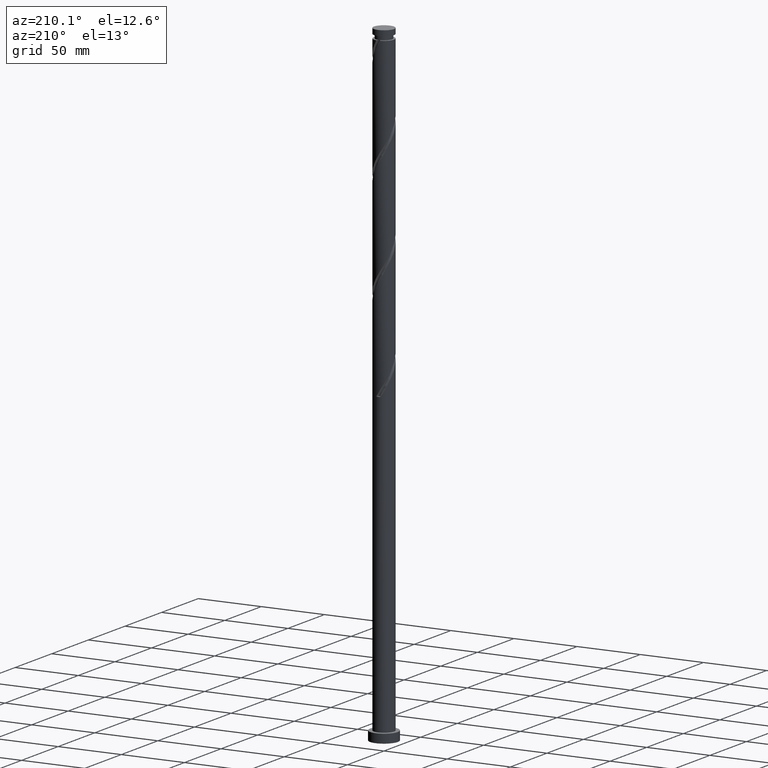
[diagram: clean part render]
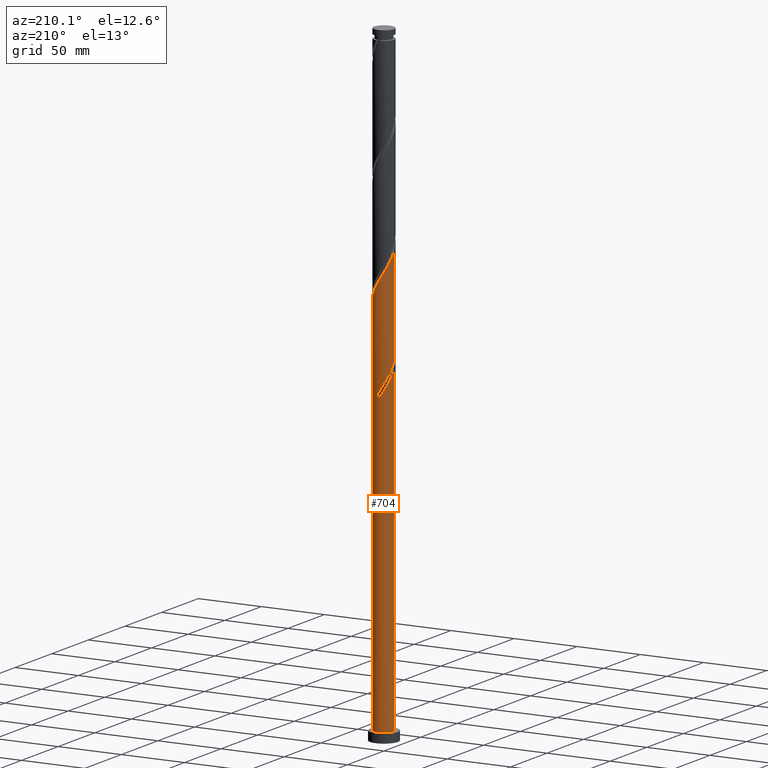
[diagram: same view with one face highlighted and labeled with its STEP entity id]
A machine part, auxiliary view. The second image highlights one B-rep face of the part: STEP entity #704.
In plain terms, the highlighted cylindrical surface (edge-blend (fillet) strip) has radius 8 mm, axis along (-0, -0, -1).
Its self-contained STEP definition (entity closure, byte-faithful):
#2 = CARTESIAN_POINT ( 'NONE',  ( -6.234280214836370959, 5.074897616815222889, 251.7156742140035419 ) ) ;
#38 = DIRECTION ( 'NONE',  ( 1.000000000000000000, 0.000000000000000000, 0.000000000000000000 ) ) ;
#60 =( BOUNDED_CURVE ( )  B_SPLINE_CURVE ( 2, ( #79, #727, #1300, #1951, #1107, #1586, #1940, #2, #139, #789, #651, #1774, #2084, #1754, #1764 ),
 .UNSPECIFIED., .F., .T. ) 
 B_SPLINE_CURVE_WITH_KNOTS ( ( 3, 2, 2, 2, 2, 2, 2, 3 ),
 ( 0.000000000000000000, 0.007812500000000000000, 0.01562500000000000000, 0.02343750000000000000, 0.03125000000000000000, 0.03906250000000000000, 0.04687500000000000000, 0.05452869021808715022 ),
 .UNSPECIFIED. ) 
 CURVE ( )  GEOMETRIC_REPRESENTATION_ITEM ( )  RATIONAL_B_SPLINE_CURVE ( ( 0.9090909090909388146, 0.9047133878838449217, 0.9090909090909388146, 0.9047133878838449217, 0.9090909090909388146, 0.9047133878838449217, 0.9090909090909388146, 0.9047133878838449217, 0.9090909090909388146, 0.9047133878838449217, 0.9090909090909388146, 0.9047133878838449217, 0.9090909090909388146, 0.9048023726119367449, 0.9089165573359421213 ) ) 
 REPRESENTATION_ITEM ( '' )  );
#74 = CIRCLE ( 'NONE', #2012, 8.000000000000000000 ) ;
#79 = CARTESIAN_POINT ( 'NONE',  ( -1.591979899370597140, 7.840000000000009628, 242.6010908806701991 ) ) ;
#101 = CARTESIAN_POINT ( 'NONE',  ( 7.840000000000009628, 1.591979899370597806, 305.1010908806701423 ) ) ;
#109 = EDGE_CURVE ( 'NONE', #1816, #1384, #900, .T. ) ;
#114 = CARTESIAN_POINT ( 'NONE',  ( 0.03188232739405321564, 7.999936469572738851, 245.2052575473368279 ) ) ;
#120 = CARTESIAN_POINT ( 'NONE',  ( 6.193632616777009936, 5.124426858357238324, 311.6115075473367710 ) ) ;
#123 = CARTESIAN_POINT ( 'NONE',  ( -4.418017382144905802, 6.669416946860161843, 253.0177575473367995 ) ) ;
#131 = EDGE_LOOP ( 'NONE', ( #202, #1313, #1236, #1159, #943, #1395, #1489, #485 ) ) ;
#133 = CARTESIAN_POINT ( 'NONE',  ( -6.193632616776999278, 5.124426858357232106, 256.9240075473367710 ) ) ;
#139 = CARTESIAN_POINT ( 'NONE',  ( -6.669416946860168949, 4.418017382144911132, 253.0177575473369131 ) ) ;
#148 = CARTESIAN_POINT ( 'NONE',  ( 8.000000000000000000, 9.797174393178825657E-16, 500.0000000000000000 ) ) ;
#171 = CARTESIAN_POINT ( 'NONE',  ( -7.999999999999998224, 1.585746514809287056E-14, 266.0912878586669308 ) ) ;
#174 = CIRCLE ( 'NONE', #280, 8.000000000000000000 ) ;
#199 = EDGE_CURVE ( 'NONE', #1023, #1607, #1218, .T. ) ;
#202 = ORIENTED_EDGE ( 'NONE', *, *, #199, .F. ) ;
#259 = CARTESIAN_POINT ( 'NONE',  ( 7.999936469572752173, 0.03188232739404883720, 302.4969242140035135 ) ) ;
#271 = CARTESIAN_POINT ( 'NONE',  ( 6.633991202741126081, 4.471035754940183793, 310.3094242140035703 ) ) ;
#280 = AXIS2_PLACEMENT_3D ( 'NONE', #1822, #872, #38 ) ;
#306 = CARTESIAN_POINT ( 'NONE',  ( -0.7560426422623236498, 8.003076604740073208, 246.5073408806701991 ) ) ;
#335 = LINE ( 'NONE', #148, #1697 ) ;
#344 = VERTEX_POINT ( 'NONE', #2083 ) ;
#386 = VERTEX_POINT ( 'NONE', #1928 ) ;
#398 = CARTESIAN_POINT ( 'NONE',  ( 0.000000000000000000, 0.000000000000000000, 500.0000000000000000 ) ) ;
#417 = VECTOR ( 'NONE', #966, 1000.000000000000000 ) ;
#422 = CARTESIAN_POINT ( 'NONE',  ( 3.031987717150570028, 7.403178404107809030, 318.1219242140035135 ) ) ;
#425 = EDGE_CURVE ( 'NONE', #1023, #344, #335, .T. ) ;
#436 = CARTESIAN_POINT ( 'NONE',  ( -1.529440464544429945, 7.852439867035857723, 247.8094242140034851 ) ) ;
#452 = CARTESIAN_POINT ( 'NONE',  ( -5.679353536596805974, 5.634265116796116857, 333.7469242140034567 ) ) ;
#465 = CARTESIAN_POINT ( 'NONE',  ( -5.634265116796108863, 5.679353536596797980, 255.6219242140035419 ) ) ;
#485 = ORIENTED_EDGE ( 'NONE', *, *, #1360, .F. ) ;
#496 =( BOUNDED_CURVE ( )  B_SPLINE_CURVE ( 2, ( #946, #634, #1598, #624, #1255, #761, #605, #645, #1923, #133, #465, #1579, #123, #782, #1432, #1112, #436, #306, #114, #955, #793 ),
 .UNSPECIFIED., .F., .T. ) 
 B_SPLINE_CURVE_WITH_KNOTS ( ( 3, 2, 2, 2, 2, 2, 2, 2, 2, 2, 3 ),
 ( 0.9295286902180872612, 0.9296875000000000000, 0.9375000000000000000, 0.9453125000000000000, 0.9531250000000000000, 0.9609375000000000000, 0.9687500000000000000, 0.9765625000000000000, 0.9843750000000000000, 0.9921875000000000000, 1.000000000000000000 ),
 .UNSPECIFIED. ) 
 CURVE ( )  GEOMETRIC_REPRESENTATION_ITEM ( )  RATIONAL_B_SPLINE_CURVE ( ( 0.9089165573359369033, 0.9090019243628416623, 0.9090909090909334855, 0.9047133878838395926, 0.9090909090909334855, 0.9047133878838395926, 0.9090909090909334855, 0.9047133878838395926, 0.9090909090909334855, 0.9047133878838395926, 0.9090909090909334855, 0.9047133878838395926, 0.9090909090909334855, 0.9047133878838395926, 0.9090909090909334855, 0.9047133878838395926, 0.9090909090909334855, 0.9047133878838395926, 0.9090909090909334855, 0.9047133878838395926, 0.9090909090909334855 ) ) 
 REPRESENTATION_ITEM ( '' )  );
#497 = CARTESIAN_POINT ( 'NONE',  ( -8.000000000000010658, 8.517702835776209769E-15, 344.1108939026732401 ) ) ;
#582 = CARTESIAN_POINT ( 'NONE',  ( 1.529440464544438383, 7.852439867035869270, 320.7260908806701991 ) ) ;
#592 = CARTESIAN_POINT ( 'NONE',  ( -8.000000000000007105, 0.7718385194318856390, 342.8349137972573430 ) ) ;
#601 = CARTESIAN_POINT ( 'NONE',  ( -1.591979899370597362, 7.840000000000009628, 325.9344242140035135 ) ) ;
#605 = CARTESIAN_POINT ( 'NONE',  ( -7.378776727149912062, 3.090898576606945003, 260.8302575473368279 ) ) ;
#624 = CARTESIAN_POINT ( 'NONE',  ( -7.996796334405404494, 0.8198072970504300949, 264.7365075473368847 ) ) ;
#634 = CARTESIAN_POINT ( 'NONE',  ( -7.999999999999998224, 0.01594122699409487517, 266.0649343041496877 ) ) ;
#645 = CARTESIAN_POINT ( 'NONE',  ( -7.074349788705235120, 3.817644651523122157, 259.5281742140034567 ) ) ;
#651 = CARTESIAN_POINT ( 'NONE',  ( -7.403178404107809030, 3.031987717150571360, 255.6219242140035988 ) ) ;
#704 = ADVANCED_FACE ( 'NONE', ( #713 ), #2003, .T. ) ;
#713 = FACE_OUTER_BOUND ( 'NONE', #131, .T. ) ;
#727 = CARTESIAN_POINT ( 'NONE',  ( -2.364152501690767849, 7.683203665594601439, 243.9031742140035135 ) ) ;
#738 = CARTESIAN_POINT ( 'NONE',  ( 7.074349788705244002, 3.817644651523123489, 309.0073408806701423 ) ) ;
#749 = CARTESIAN_POINT ( 'NONE',  ( -5.124426858357238324, 6.193632616777009936, 332.4448408806701423 ) ) ;
#757 = CARTESIAN_POINT ( 'NONE',  ( -7.104553678883964274, 3.761137147474600262, 337.6531742140034567 ) ) ;
#761 = CARTESIAN_POINT ( 'NONE',  ( -7.683203665594589005, 2.364152501690766517, 262.1323408806701423 ) ) ;
#766 = CARTESIAN_POINT ( 'NONE',  ( 5.634265116796118633, 5.679353536596803309, 312.9135908806700854 ) ) ;
#782 = CARTESIAN_POINT ( 'NONE',  ( -3.761137147474594489, 7.104553678883956280, 251.7156742140035419 ) ) ;
#789 = CARTESIAN_POINT ( 'NONE',  ( -7.104553678883964274, 3.761137147474600262, 254.3198408806701707 ) ) ;
#793 = CARTESIAN_POINT ( 'NONE',  ( 1.591979899370600027, 7.840000000000000746, 242.6010908806701707 ) ) ;
#864 = DIRECTION ( 'NONE',  ( 0.000000000000000000, 1.000000000000000000, -2.428612866367529932E-14 ) ) ;
#872 = DIRECTION ( 'NONE',  ( 0.000000000000000000, 0.000000000000000000, 1.000000000000000000 ) ) ;
#888 = DIRECTION ( 'NONE',  ( -0.000000000000000000, -0.000000000000000000, -1.000000000000000000 ) ) ;
#900 = LINE ( 'NONE', #1554, #1181 ) ;
#911 = CARTESIAN_POINT ( 'NONE',  ( -3.090898576606947223, 7.378776727149924497, 328.5385908806700854 ) ) ;
#940 = CARTESIAN_POINT ( 'NONE',  ( 4.418017382144913796, 6.669416946860166284, 315.5177575473368279 ) ) ;
#943 = ORIENTED_EDGE ( 'NONE', *, *, #2056, .F. ) ;
#946 = CARTESIAN_POINT ( 'NONE',  ( -7.999999999999998224, 1.585746514809287056E-14, 266.0912878586669308 ) ) ;
#955 = CARTESIAN_POINT ( 'NONE',  ( 0.8198072970504303170, 7.996796334405404494, 243.9031742140035135 ) ) ;
#964 = VERTEX_POINT ( 'NONE', #1473 ) ;
#966 = DIRECTION ( 'NONE',  ( -0.000000000000000000, -0.000000000000000000, -1.000000000000000000 ) ) ;
#1023 = VERTEX_POINT ( 'NONE', #1646 ) ;
#1070 = CARTESIAN_POINT ( 'NONE',  ( 2.302838286826541125, 7.701803129331653786, 319.4240075473368279 ) ) ;
#1080 = CARTESIAN_POINT ( 'NONE',  ( 8.000000000000010658, 0.01594122699407614710, 302.4705807905239112 ) ) ;
#1089 = CARTESIAN_POINT ( 'NONE',  ( 7.378776727149924497, 3.090898576606948112, 307.7052575473368279 ) ) ;
#1106 = CARTESIAN_POINT ( 'NONE',  ( 8.000000000000012434, 1.106742219668252345E-14, 302.4442272360066681 ) ) ;
#1107 = CARTESIAN_POINT ( 'NONE',  ( -4.471035754940181128, 6.633991202741127857, 247.8094242140035135 ) ) ;
#1112 = CARTESIAN_POINT ( 'NONE',  ( -2.302838286826536240, 7.701803129331646680, 249.1115075473368279 ) ) ;
#1123 = CARTESIAN_POINT ( 'NONE',  ( -8.000000000000000000, 0.000000000000000000, 7.000000000000000000 ) ) ;
#1159 = ORIENTED_EDGE ( 'NONE', *, *, #109, .F. ) ;
#1181 = VECTOR ( 'NONE', #2064, 1000.000000000000000 ) ;
#1218 =( BOUNDED_CURVE ( )  B_SPLINE_CURVE ( 2, ( #1106, #1080, #259, #2036, #101, #1585, #1089, #738, #271, #120, #766, #1401, #940, #1390, #422, #1070, #582, #1230, #1880, #1725, #601, #1260, #911, #1566, #1909, #749, #452, #2046, #2072, #757, #1427, #1419, #1409, #592, #1241 ),
 .UNSPECIFIED., .F., .T. ) 
 B_SPLINE_CURVE_WITH_KNOTS ( ( 3, 2, 2, 2, 2, 2, 2, 2, 2, 2, 2, 2, 2, 2, 2, 2, 2, 3 ),
 ( 0.1795286902180871225, 0.1796875000000000000, 0.1875000000000000000, 0.1953125000000000000, 0.2031250000000000000, 0.2109375000000000000, 0.2187500000000000000, 0.2265625000000000000, 0.2343750000000000000, 0.2421875000000000000, 0.2500000000000000000, 0.2578125000000000000, 0.2656250000000000000, 0.2734375000000000000, 0.2812500000000000000, 0.2890625000000000000, 0.2968750000000000000, 0.3045286902180868727 ),
 .UNSPECIFIED. ) 
 CURVE ( )  GEOMETRIC_REPRESENTATION_ITEM ( )  RATIONAL_B_SPLINE_CURVE ( ( 0.9089165573359422323, 0.9090019243628469914, 0.9090909090909388146, 0.9047133878838449217, 0.9090909090909388146, 0.9047133878838449217, 0.9090909090909388146, 0.9047133878838449217, 0.9090909090909388146, 0.9047133878838449217, 0.9090909090909388146, 0.9047133878838449217, 0.9090909090909388146, 0.9047133878838449217, 0.9090909090909388146, 0.9047133878838449217, 0.9090909090909388146, 0.9047133878838449217, 0.9090909090909388146, 0.9047133878838449217, 0.9090909090909388146, 0.9047133878838449217, 0.9090909090909388146, 0.9047133878838449217, 0.9090909090909388146, 0.9047133878838449217, 0.9090909090909388146, 0.9047133878838449217, 0.9090909090909388146, 0.9047133878838449217, 0.9090909090909388146, 0.9047133878838449217, 0.9090909090909388146, 0.9048023726119369670, 0.9089165573359418993 ) ) 
 REPRESENTATION_ITEM ( '' )  );
#1230 = CARTESIAN_POINT ( 'NONE',  ( 0.7560426422623270915, 8.003076604740083866, 322.0281742140035135 ) ) ;
#1236 = ORIENTED_EDGE ( 'NONE', *, *, #1842, .T. ) ;
#1241 = CARTESIAN_POINT ( 'NONE',  ( -8.000000000000010658, 8.517702835776209769E-15, 344.1108939026732401 ) ) ;
#1255 = CARTESIAN_POINT ( 'NONE',  ( -7.840000000000000746, 1.591979899370598250, 263.4344242140034567 ) ) ;
#1260 = CARTESIAN_POINT ( 'NONE',  ( -2.364152501690767849, 7.683203665594601439, 327.2365075473367710 ) ) ;
#1300 = CARTESIAN_POINT ( 'NONE',  ( -3.090898576606947223, 7.378776727149924497, 245.2052575473368563 ) ) ;
#1313 = ORIENTED_EDGE ( 'NONE', *, *, #425, .T. ) ;
#1333 = EDGE_CURVE ( 'NONE', #1873, #386, #496, .T. ) ;
#1360 = EDGE_CURVE ( 'NONE', #1607, #1873, #1446, .T. ) ;
#1384 = VERTEX_POINT ( 'NONE', #1123 ) ;
#1390 = CARTESIAN_POINT ( 'NONE',  ( 3.761137147474604259, 7.104553678883962498, 316.8198408806702560 ) ) ;
#1395 = ORIENTED_EDGE ( 'NONE', *, *, #1533, .T. ) ;
#1401 = CARTESIAN_POINT ( 'NONE',  ( 5.074897616815221113, 6.234280214836371847, 314.2156742140034567 ) ) ;
#1409 = CARTESIAN_POINT ( 'NONE',  ( -7.852439867035869270, 1.529440464544433942, 341.5594242140035703 ) ) ;
#1419 = CARTESIAN_POINT ( 'NONE',  ( -7.701803129331653786, 2.302838286826541125, 340.2573408806701991 ) ) ;
#1427 = CARTESIAN_POINT ( 'NONE',  ( -7.403178404107809030, 3.031987717150571360, 338.9552575473368847 ) ) ;
#1432 = CARTESIAN_POINT ( 'NONE',  ( -3.031987717150564698, 7.403178404107800148, 250.4135908806701707 ) ) ;
#1446 = LINE ( 'NONE', #1934, #417 ) ;
#1452 = DIRECTION ( 'NONE',  ( -0.000000000000000000, -0.000000000000000000, -1.000000000000000000 ) ) ;
#1473 = CARTESIAN_POINT ( 'NONE',  ( -1.591979899370597140, 7.840000000000010516, 242.6010908806701707 ) ) ;
#1489 = ORIENTED_EDGE ( 'NONE', *, *, #1333, .F. ) ;
#1492 = CARTESIAN_POINT ( 'NONE',  ( 0.000000000000000000, 0.000000000000000000, 242.6010908806703981 ) ) ;
#1533 = EDGE_CURVE ( 'NONE', #964, #386, #74, .T. ) ;
#1542 = DIRECTION ( 'NONE',  ( -1.000000000000000000, 0.000000000000000000, 0.000000000000000000 ) ) ;
#1554 = CARTESIAN_POINT ( 'NONE',  ( -8.000000000000000000, 0.000000000000000000, 500.0000000000000000 ) ) ;
#1566 = CARTESIAN_POINT ( 'NONE',  ( -3.817644651523126154, 7.074349788705243114, 329.8406742140035703 ) ) ;
#1579 = CARTESIAN_POINT ( 'NONE',  ( -5.074897616815214008, 6.234280214836361189, 254.3198408806701138 ) ) ;
#1585 = CARTESIAN_POINT ( 'NONE',  ( 7.683203665594604104, 2.364152501690763852, 306.4031742140034567 ) ) ;
#1586 = CARTESIAN_POINT ( 'NONE',  ( -5.124426858357238324, 6.193632616777009936, 249.1115075473368563 ) ) ;
#1598 = CARTESIAN_POINT ( 'NONE',  ( -7.999936469572738851, 0.03188232739405364585, 266.0385908806700854 ) ) ;
#1607 = VERTEX_POINT ( 'NONE', #497 ) ;
#1646 = CARTESIAN_POINT ( 'NONE',  ( 8.000000000000012434, 1.106742219668252345E-14, 302.4442272360066681 ) ) ;
#1652 = DIRECTION ( 'NONE',  ( 0.000000000000000000, -2.602085213965207802E-14, -1.000000000000000000 ) ) ;
#1684 = CARTESIAN_POINT ( 'NONE',  ( -8.000000000000010658, 8.517702835776209769E-15, 260.7775605693399825 ) ) ;
#1697 = VECTOR ( 'NONE', #1452, 1000.000000000000000 ) ;
#1725 = CARTESIAN_POINT ( 'NONE',  ( -0.8198072970504313162, 7.996796334405415152, 324.6323408806701991 ) ) ;
#1754 = CARTESIAN_POINT ( 'NONE',  ( -8.000000000000012434, 0.7718385194318587716, 259.5015804639240287 ) ) ;
#1764 = CARTESIAN_POINT ( 'NONE',  ( -8.000000000000010658, 8.517702835776211347E-15, 260.7775605693399825 ) ) ;
#1774 = CARTESIAN_POINT ( 'NONE',  ( -7.701803129331653786, 2.302838286826541125, 256.9240075473368279 ) ) ;
#1794 = AXIS2_PLACEMENT_3D ( 'NONE', #398, #888, #1542 ) ;
#1816 = VERTEX_POINT ( 'NONE', #1684 ) ;
#1822 = CARTESIAN_POINT ( 'NONE',  ( 0.000000000000000000, 0.000000000000000000, 7.000000000000000000 ) ) ;
#1842 = EDGE_CURVE ( 'NONE', #344, #1384, #174, .T. ) ;
#1873 = VERTEX_POINT ( 'NONE', #171 ) ;
#1880 = CARTESIAN_POINT ( 'NONE',  ( -0.03188232739404842087, 7.999936469572752173, 323.3302575473368847 ) ) ;
#1909 = CARTESIAN_POINT ( 'NONE',  ( -4.471035754940181128, 6.633991202741127857, 331.1427575473368279 ) ) ;
#1923 = CARTESIAN_POINT ( 'NONE',  ( -6.633991202741117199, 4.471035754940177576, 258.2260908806700854 ) ) ;
#1928 = CARTESIAN_POINT ( 'NONE',  ( 1.591979899370600249, 7.839999999999999858, 242.6010908806701707 ) ) ;
#1934 = CARTESIAN_POINT ( 'NONE',  ( -8.000000000000000000, 0.000000000000000000, 500.0000000000000000 ) ) ;
#1940 = CARTESIAN_POINT ( 'NONE',  ( -5.679353536596805974, 5.634265116796116857, 250.4135908806702275 ) ) ;
#1951 = CARTESIAN_POINT ( 'NONE',  ( -3.817644651523126154, 7.074349788705243114, 246.5073408806701423 ) ) ;
#2003 = CYLINDRICAL_SURFACE ( 'NONE', #1794, 8.000000000000000000 ) ;
#2012 = AXIS2_PLACEMENT_3D ( 'NONE', #1492, #1652, #864 ) ;
#2036 = CARTESIAN_POINT ( 'NONE',  ( 7.996796334405415152, 0.8198072970504317603, 303.7990075473367710 ) ) ;
#2046 = CARTESIAN_POINT ( 'NONE',  ( -6.234280214836370959, 5.074897616815222889, 335.0490075473367710 ) ) ;
#2056 = EDGE_CURVE ( 'NONE', #964, #1816, #60, .T. ) ;
#2064 = DIRECTION ( 'NONE',  ( -0.000000000000000000, -0.000000000000000000, -1.000000000000000000 ) ) ;
#2072 = CARTESIAN_POINT ( 'NONE',  ( -6.669416946860168949, 4.418017382144911132, 336.3510908806702560 ) ) ;
#2083 = CARTESIAN_POINT ( 'NONE',  ( 8.000000000000000000, 9.797174393178825657E-16, 7.000000000000000000 ) ) ;
#2084 = CARTESIAN_POINT ( 'NONE',  ( -7.852439867035869270, 1.529440464544433942, 258.2260908806701423 ) ) ;